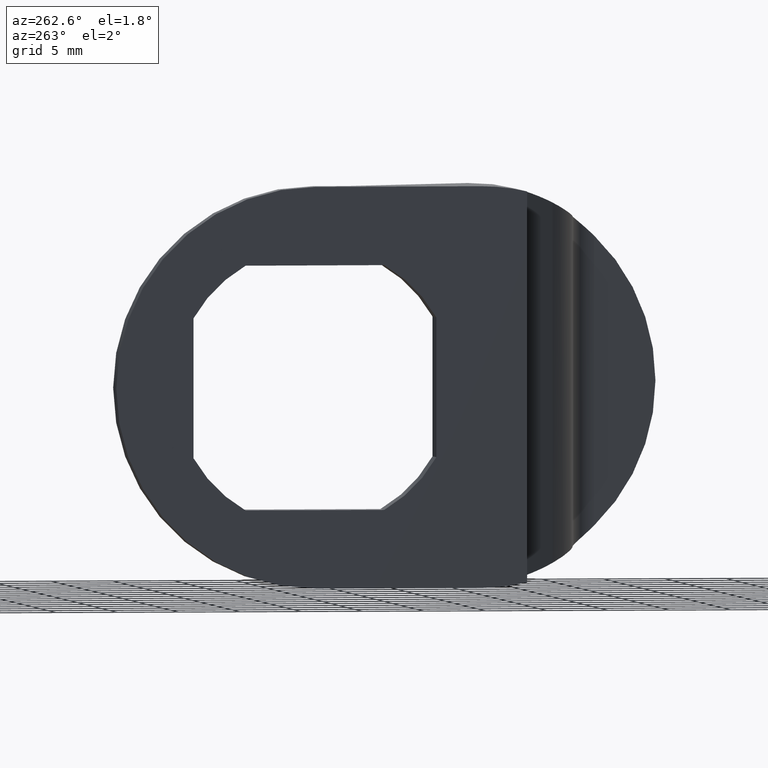
[diagram: clean part render]
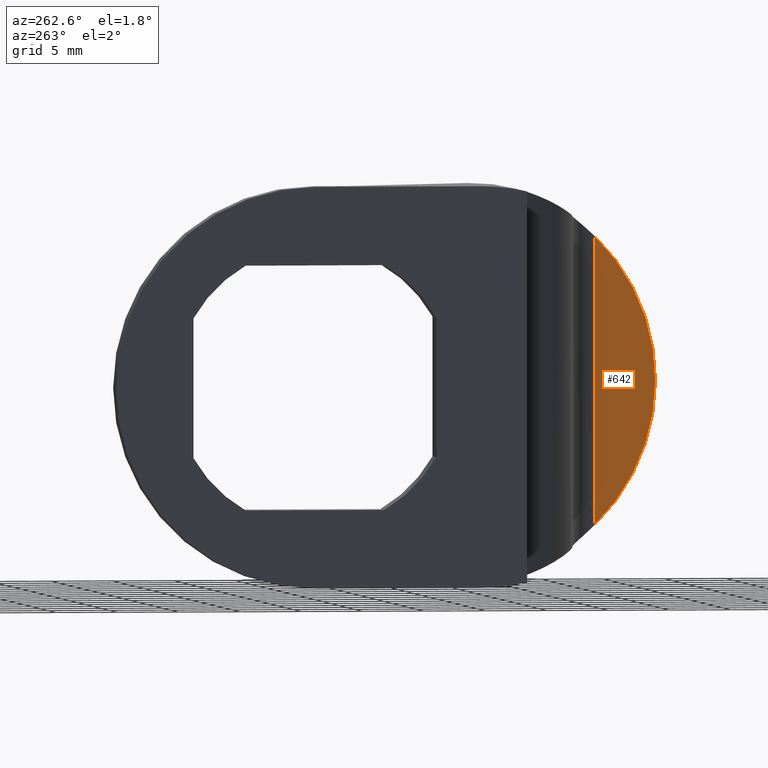
[diagram: same view with one face highlighted and labeled with its STEP entity id]
A machine part, auxiliary view. The second image highlights one B-rep face of the part: STEP entity #642.
In plain terms, the highlighted planar face has unit normal (-1, -0, 0).
Its self-contained STEP definition (entity closure, byte-faithful):
#32=PLANE('',#711);
#91=FACE_OUTER_BOUND('',#130,.T.);
#130=EDGE_LOOP('',(#588,#589));
#173=LINE('',#1315,#216);
#216=VECTOR('',#859,23.4520787991172);
#251=CIRCLE('',#697,16.25);
#303=VERTEX_POINT('',#1264);
#304=VERTEX_POINT('',#1275);
#385=EDGE_CURVE('',#304,#303,#251,.T.);
#394=EDGE_CURVE('',#304,#303,#173,.T.);
#588=ORIENTED_EDGE('',*,*,#385,.T.);
#589=ORIENTED_EDGE('',*,*,#394,.F.);
#642=ADVANCED_FACE('',(#91),#32,.T.);
#697=AXIS2_PLACEMENT_3D('',#1276,#848,#849);
#711=AXIS2_PLACEMENT_3D('',#1335,#889,#890);
#848=DIRECTION('center_axis',(-1.,-3.1720657846433E-16,0.));
#849=DIRECTION('ref_axis',(4.33440057813741E-32,-1.36642833800019E-16,-1.));
#859=DIRECTION('',(0.,0.,1.));
#889=DIRECTION('center_axis',(-1.,-3.1720657846433E-16,0.));
#890=DIRECTION('ref_axis',(0.,0.,1.));
#1264=CARTESIAN_POINT('',(15.7,-24.8,11.7260393995586));
#1275=CARTESIAN_POINT('',(15.7,-24.8,-11.7260393995586));
#1276=CARTESIAN_POINT('Origin',(15.7,-13.55,0.));
#1315=CARTESIAN_POINT('',(15.7,-24.8,0.));
#1335=CARTESIAN_POINT('Origin',(15.7,-29.8,0.));